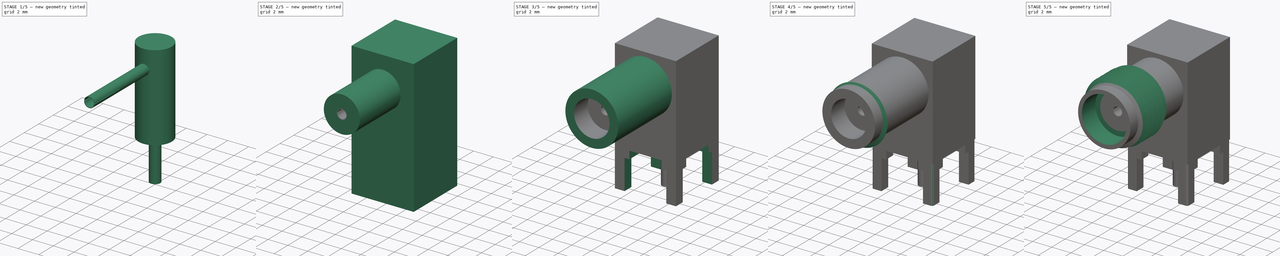
[diagram: build sequence overview — one tinted view per stage of 5, left to right]
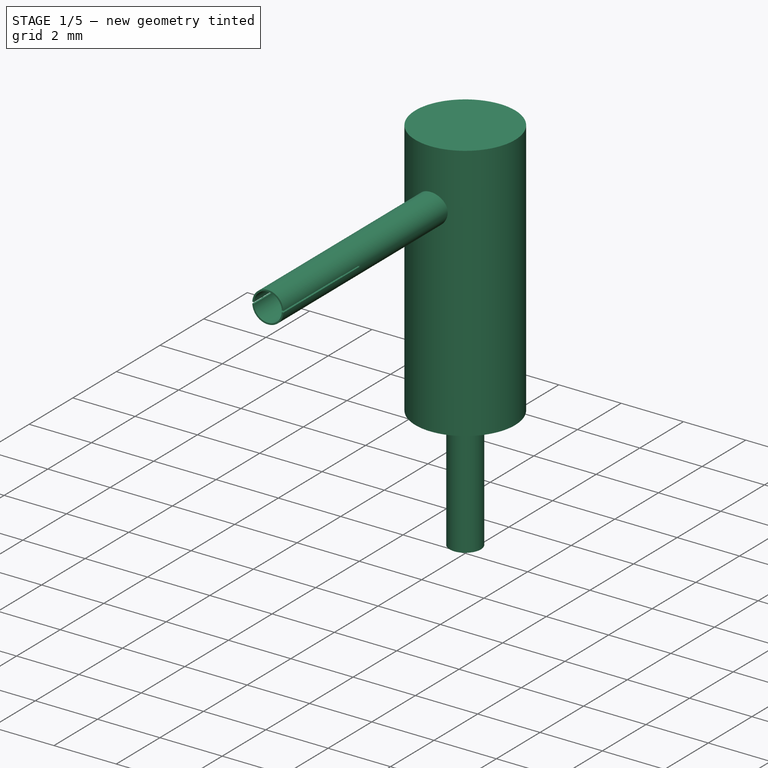
[diagram: stage 1 of 5 — iso view after this stage's code; geometry added in this stage tinted green]
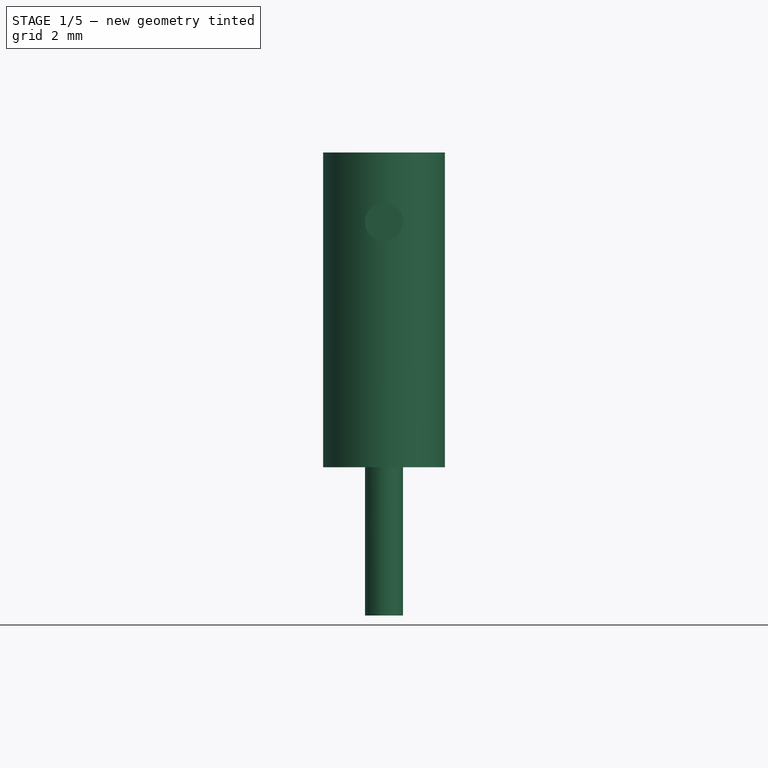
[diagram: stage 1 of 5 — front view after this stage's code; geometry added in this stage tinted green]
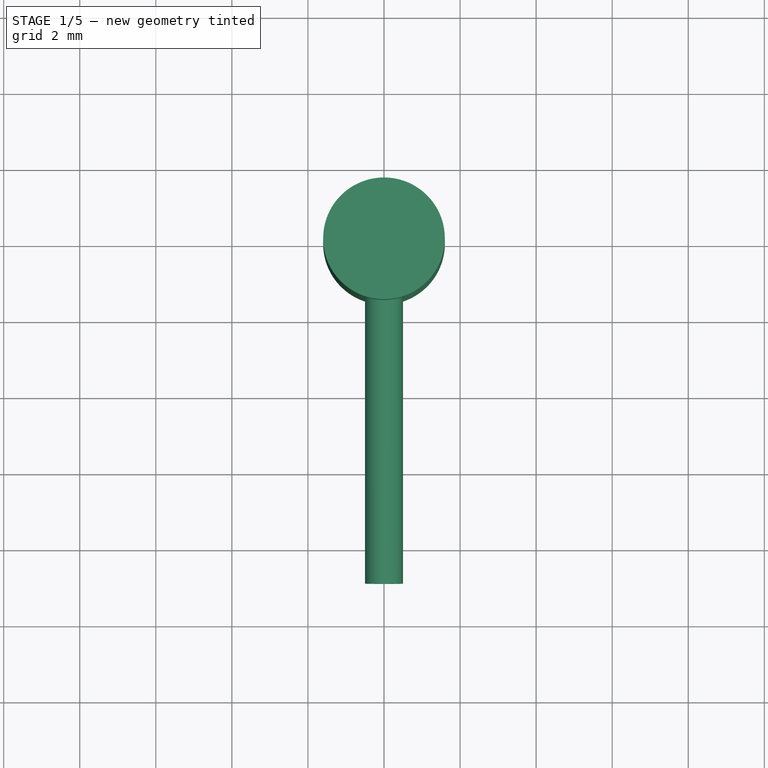
[diagram: stage 1 of 5 — top view after this stage's code; geometry added in this stage tinted green]
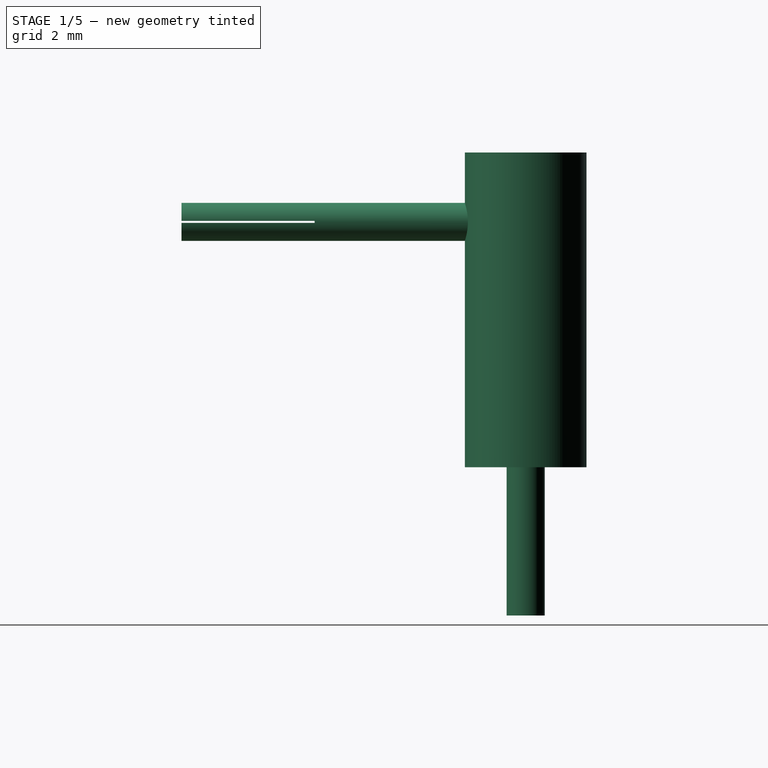
[diagram: stage 1 of 5 — right view after this stage's code; geometry added in this stage tinted green]
FCSTD DOCUMENT  (FreeCAD 1.0R38641 +468 (Git))
Label: sma-5-1814400-2
License: All rights reserved
LicenseURL: http://en.wikipedia.org/wiki/All_rights_reserved
objects: Sketcher::SketchObject×18, PartDesign::Pocket×9, PartDesign::Pad×6, PartDesign::Plane×3, PartDesign::AdditiveHelix×3, PartDesign::Body×3, Spreadsheet::Sheet×1, PartDesign::Line×1, PartDesign::PolarPattern×1, PartDesign::LinearPattern×1
note: 101 computed .brp shape members not serialized (recipe doc carries the construction recipe); baked Part::Feature solids carry a one-line shape summary decoded from their .brp

FEATURE [PartDesign::Body] Body
  AllowCompound = false
  Group = -> [DatumPlane,DatumLine,Pad,Sketch,Sketch001,Pocket,Sketch002,Pocket001,Sketch003,Pad001,Sketch004,Sketch005,Pocket003,Sketch006,Pocket004,Sketch007,Pocket005,PolarPattern,Sketch008,Sketch009,AdditiveHelix,AdditiveHelix001,LinearPattern,Sketch010,AdditiveHelix002,Pocket006]
  Origin = -> Origin
  Tip = -> Pocket006
FEATURE [PartDesign::Plane] DatumPlane001
  AttachmentOffset = pos=(0,0,9.05) rot=(0,0,1;0rad)
  AttachmentSupport = -> [XZ_Plane001]
  Length = 60
  MapMode = 5
  Placement = pos=(0,-9.05,2e-15) rot=(1,0,0;1.5708rad)
  ResizeMode = 0
  Width = 60
  expr: .AttachmentOffset.Base.z = <<Master>>.ra_clen - 2 mm
FEATURE [Sketcher::SketchObject] Sketch011
  ArcFitTolerance = 0
  AttachmentOffset = pos=(0,0,0.8) rot=(0,0,1;0rad)
  AttachmentSupport = -> [XY_Plane001]
  FullyConstrained = true
  MakeInternals = false
  MapMode = 5
  Placement = pos=(0,0,0.8) rot=(0,0,1;0rad)
  expr: .AttachmentOffset.Base.z = <<Master>>.pin_step
  sketch-geometry (1):
    g0: Circle CenterX=0 CenterY=0 CenterZ=0 NormalX=0 NormalY=0 NormalZ=1 AngleXU=0 Radius=1.6
  constraints (2):
    c: Coincident(g0,g-1)
    c: Diameter(g0) = 3.2
FEATURE [PartDesign::Pad] Pad002
  Direction = (0,0,1)
  Length = 8.275
  Length2 = 100
  Profile = -> Sketch011
  Suppressed = false
  Type = 0
  expr: Length = <<Master>>.ra_offset + 1.825 mm - <<Master>>.pin_step
FEATURE [PartDesign::Body] Body001  label="Insulator"
  AllowCompound = false
  Group = -> [DatumPlane001,Sketch011,Pad002,Sketch012,Pad003,Sketch013,Pocket007,Sketch014,Pocket008]
  Origin = -> Origin001
  Tip = -> Pocket008
FEATURE [PartDesign::Plane] DatumPlane002
  AttachmentOffset = pos=(0,0,9.05) rot=(0,0,1;0rad)
  AttachmentSupport = -> [XZ_Plane002]
  Length = 60
  MapMode = 5
  Placement = pos=(0,-9.05,2e-15) rot=(1,0,0;1.5708rad)
  ResizeMode = 0
  Width = 60
  expr: .AttachmentOffset.Base.z = <<Master>>.ra_clen - 2 mm
FEATURE [Sketcher::SketchObject] Sketch015
  ArcFitTolerance = 0
  AttachmentSupport = -> [XY_Plane002]
  FullyConstrained = true
  MakeInternals = false
  MapMode = 5
  expr: Constraints[1] = <<Master>>.pin_dia
  sketch-geometry (1):
    g0: Circle CenterX=0 CenterY=0 CenterZ=0 NormalX=0 NormalY=0 NormalZ=1 AngleXU=0 Radius=0.5
  constraints (2):
    c: Coincident(g0,g-1)
    c: Diameter(g0) = 1
FEATURE [PartDesign::Pad] Pad004
  Direction = (0,0,1)
  Length = 7.25
  Length2 = 3.1
  Profile = -> Sketch015
  Suppressed = false
  Type = 4
  expr: Length = <<Master>>.ra_offset
  expr: Length2 = <<Master>>.pin_len
FEATURE [Sketcher::SketchObject] Sketch016
  ArcFitTolerance = 0
  AttachmentSupport = -> [XZ_Plane002]
  FullyConstrained = true
  MakeInternals = false
  MapMode = 5
  Placement = pos=(0,0,0) rot=(1,0,0;1.5708rad)
  expr: Constraints[1] = <<Master>>.ra_offset
  expr: Constraints[2] = <<Master>>.pin_dia
  sketch-geometry (1):
    g0: Circle CenterX=0 CenterY=7.25 CenterZ=0 NormalX=0 NormalY=0 NormalZ=1 AngleXU=0 Radius=0.5
  constraints (3):
    c: PointOnObject(g0,g-2)
    c: DistanceY(g-1,g0) = 7.25
    c: Diameter(g0) = 1
FEATURE [PartDesign::Pad] Pad005
  BaseFeature = -> Pad004
  Direction = (0,-1,2e-16)
  Length = 9.05
  Length2 = 100
  Profile = -> Sketch016
  Suppressed = false
  Type = 0
  expr: Length = <<Master>>.ra_clen - 2 mm
FEATURE [Sketcher::SketchObject] Sketch017
  ArcFitTolerance = 0
  AttachmentSupport = -> [DatumPlane002]
  FullyConstrained = true
  MakeInternals = false
  MapMode = 5
  Placement = pos=(0,-9.05,2e-15) rot=(1,0,0;1.5708rad)
  expr: Constraints[1] = <<Master>>.ra_offset
  expr: Constraints[4] = <<Master>>.pin_dia + 0.001 mm
  sketch-geometry (12):
    g0: ArcOfCircle CenterX=0 CenterY=7.25 CenterZ=0 NormalX=0 NormalY=0 NormalZ=1 AngleXU=0 Radius=0.45 StartAngle=3.19718 EndAngle=6.2276
    g1: ArcOfCircle CenterX=0 CenterY=7.25 CenterZ=0 NormalX=0 NormalY=0 NormalZ=1 AngleXU=0 Radius=0.5005 StartAngle=3.09162 EndAngle=3.19156
    g2: LineSegment StartX=-0.499875 StartY=7.275 StartZ=0 EndX=-0.449305 EndY=7.275 EndZ=0
    g3: LineSegment StartX=-0.499875 StartY=7.225 StartZ=0 EndX=-0.449305 EndY=7.225 EndZ=0
    g4: LineSegment StartX=0.449305 StartY=7.275 StartZ=0 EndX=0.499875 EndY=7.275 EndZ=0
    g5: LineSegment StartX=0.449305 StartY=7.225 StartZ=0 EndX=0.499875 EndY=7.225 EndZ=0
    g6: LineSegment [constr] StartX=-0.449305 StartY=7.275 StartZ=0 EndX=0.449305 EndY=7.275 EndZ=0
    g7: LineSegment [constr] StartX=0.449305 StartY=7.225 StartZ=0 EndX=-0.449305 EndY=7.225 EndZ=0
    g8: ArcOfCircle CenterX=0 CenterY=7.25 CenterZ=0 NormalX=0 NormalY=0 NormalZ=1 AngleXU=0 Radius=0.5005 StartAngle=6.23321 EndAngle=6.33316
    g9: ArcOfCircle CenterX=0 CenterY=7.25 CenterZ=0 NormalX=0 NormalY=0 NormalZ=1 AngleXU=0 Radius=0.45 StartAngle=0.0555842 EndAngle=3.08601
    g10: LineSegment [constr] StartX=0 StartY=7.25 StartZ=0 EndX=0 EndY=7.275 EndZ=0
    g11: LineSegment [constr] StartX=0 StartY=7.25 StartZ=0 EndX=0 EndY=7.225 EndZ=0
  constraints (35):
    c: PointOnObject(g0,g-2)
    c: DistanceY(g-1,g0) = 7.25
    c: Diameter(g0) = 0.9
    c: Coincident(g1,g0)
    c: Diameter(g1) = 1.001
    c: Horizontal(g2)
    c: Horizontal(g5)
    c: Horizontal(g3)
    c: Coincident(g6,g2)
    c: Coincident(g6,g4)
    c: Horizontal(g6)
    c: Coincident(g7,g5)
    c: Coincident(g7,g3)
    c: Horizontal(g7)
    c: Horizontal(g4)
    c: Coincident(g1,g2)
    c: Coincident(g8,g4)
    c: Equal(g1,g8)
    c: Coincident(g1,g3)
    c: Coincident(g8,g5)
    c: Coincident(g1,g8)
    c: Coincident(g0,g3)
    c: Coincident(g9,g2)
    c: Equal(g0,g9)
    c: Coincident(g0,g5)
    c: Coincident(g9,g4)
    c: Coincident(g0,g9)
    c: Coincident(g10,g0)
    c: PointOnObject(g10,g6)
    c: Vertical(g10)
    c: Coincident(g11,g0)
    c: PointOnObject(g11,g7)
    c: Vertical(g11)
    c: Equal(g11,g10)
    c: DistanceY(g1,g1) = 0.05
FEATURE [PartDesign::Pocket] Pocket009
  BaseFeature = -> Pad005
  Direction = (0,1,-2e-16)
  Length = 3.5
  Length2 = 100
  Profile = -> Sketch017
  Suppressed = false
  Type = 0
FEATURE [PartDesign::Body] Body002  label="Pin"
  AllowCompound = false
  Group = -> [DatumPlane002,Sketch015,Pad004,Sketch016,Pad005,Sketch017,Pocket009]
  Origin = -> Origin002
  Tip = -> Pocket009
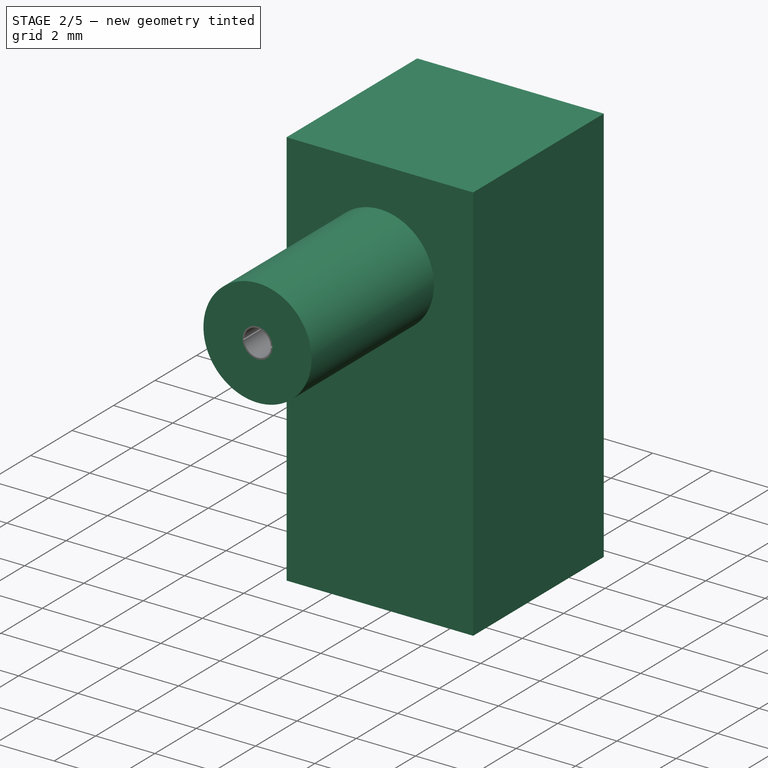
[diagram: stage 2 of 5 — iso view after this stage's code; geometry added in this stage tinted green]
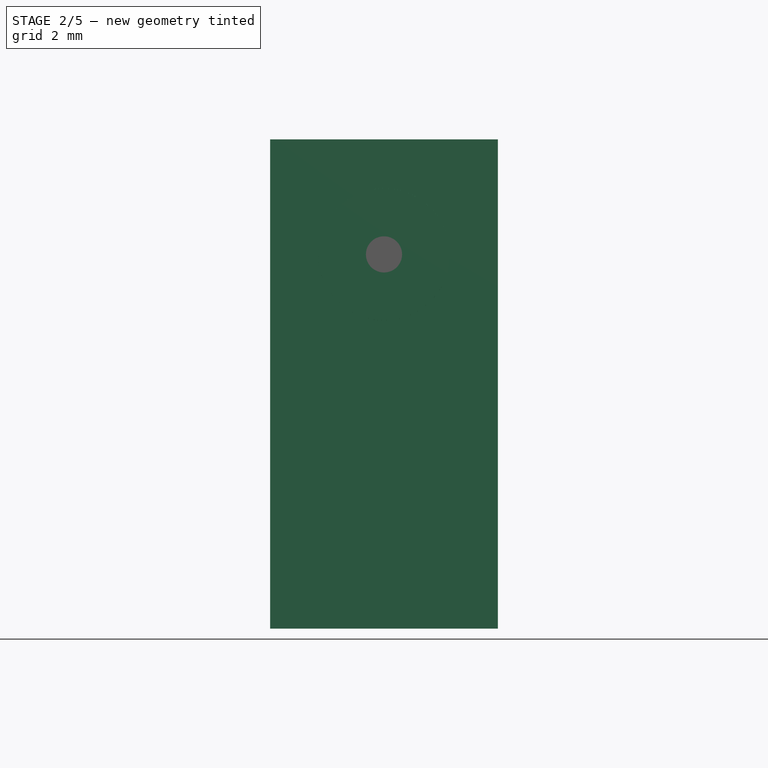
[diagram: stage 2 of 5 — front view after this stage's code; geometry added in this stage tinted green]
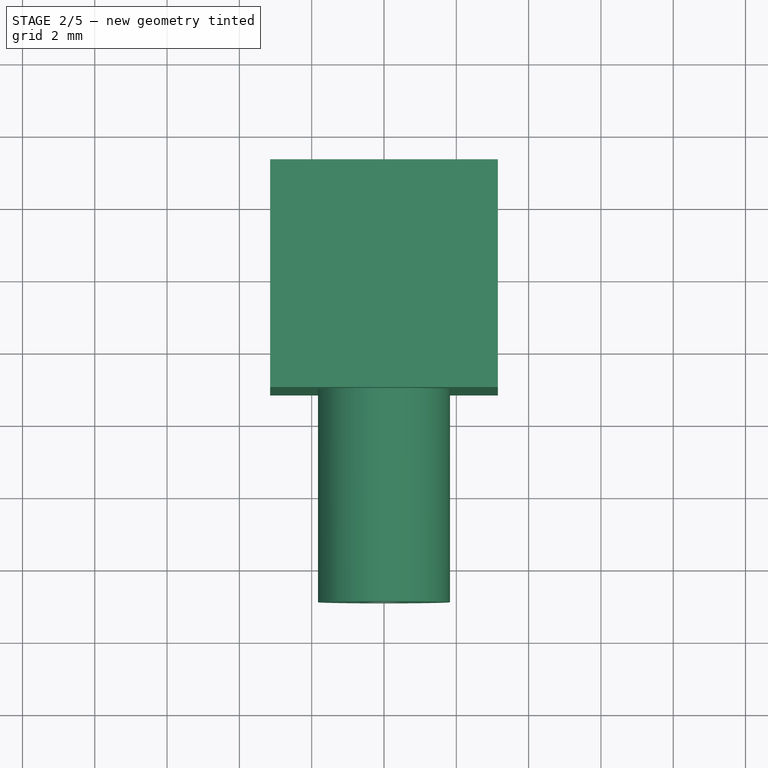
[diagram: stage 2 of 5 — top view after this stage's code; geometry added in this stage tinted green]
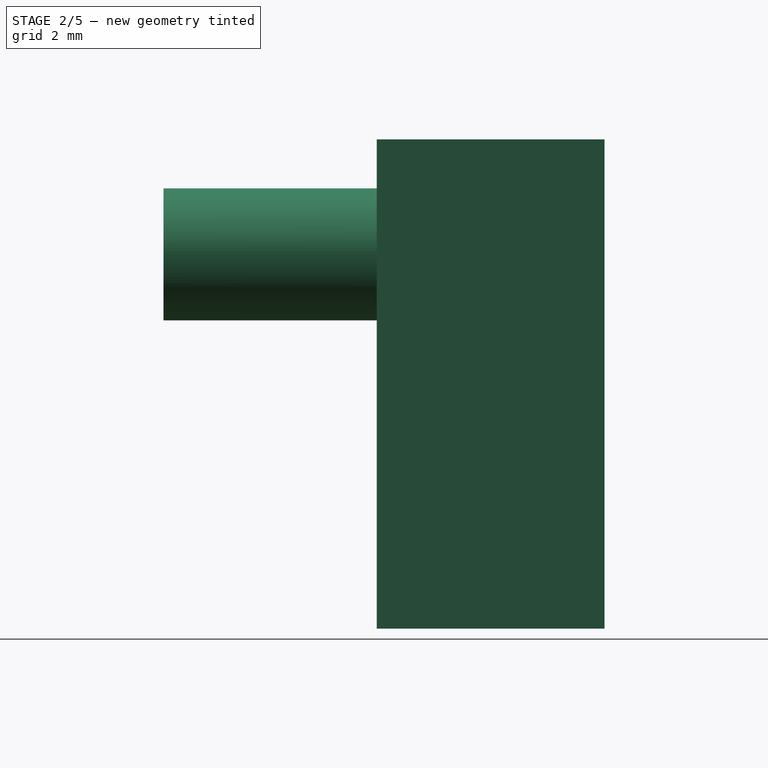
[diagram: stage 2 of 5 — right view after this stage's code; geometry added in this stage tinted green]
FEATURE [Spreadsheet::Sheet] Spreadsheet  label="Master"
  cells = A2='Body SQ; B2(body_sq)==6.3 mm; C2='body_sq; A3='Body Height; B3(body_h)==ra_offset + 3.18 mm; C3='body_h; A5='Pin len; B5(pin_len)==13.53 mm - body_h; C5='pin_len; A6='Pin Width; B6(pin_w)==1 mm; C6='pin_w; A7='Pin Step; B7(pin_step)==body_h - 9.63 mm; C7='pin_step; A8='Pin Step Width; B8(pin_step_w)==0.5 mm; C8='pin_step_w; A9='Pin Diameter; B9(pin_dia)==1 mm; C9='pin_dia; A11='RA Offset; B11(ra_offset)==7.25 mm; C11='ra_offset; A12='RA Length; B12(ra_len)==14.2 mm; C12='ra_len; A13='RA Diameter; B13(ra_dia)==5.45 mm; C13='ra_dia; A14='RA C-Length; B14(ra_clen)==ra_len - body_sq / 2; C14='ra_clen; A16='Thread Pitch; B16(thread_p)==0.7056 mm; C16='thread_p; A17='Thread First; B17(thread_f)==ra_clen - 1 mm; C17='thread_f; A18='Thread Middle; B18(thread_m)==thread_f - thread_p; C18='thread_m; A19='Thread Last; B19(thread_l)==thread_m - thread_p * 4; C19='thread_l; A20='Thread overlap offset; B20(thread_o)==0.02 mm; C20='thread_o; A21='Thread Cone; B21(thread_c)==0.513 mm; C21='thread_c; A22='Thread Cone Helix; B22(thread_ch)==ra_dia - 2 * thread_c - 0.001 mm; C22='thread_ch
FEATURE [PartDesign::Plane] DatumPlane
  AttachmentOffset = pos=(0,0,11.05) rot=(0,0,1;0rad)
  AttachmentSupport = -> [XZ_Plane]
  Length = 60
  MapMode = 5
  Placement = pos=(0,-11.05,2.5e-15) rot=(1,0,0;1.5708rad)
  ResizeMode = 0
  Width = 60
  expr: .AttachmentOffset.Base.z = <<Master>>.ra_clen
FEATURE [PartDesign::Line] DatumLine
  AttacherType = Attacher::AttachEngineLine
  AttachmentOffset = pos=(0,7.25,0) rot=(0,0,1;0rad)
  AttachmentSupport = -> [Y_Axis]
  Length = 20
  MapMode = 29
  Placement = pos=(0,1.6e-15,7.25) rot=(0,0.707107,0.707107;3.14159rad)
  ResizeMode = 0
  expr: .AttachmentOffset.Base.y = <<Master>>.ra_offset
FEATURE [Sketcher::SketchObject] Sketch
  ArcFitTolerance = 0
  AttachmentSupport = -> [XY_Plane]
  FullyConstrained = true
  MakeInternals = false
  MapMode = 5
  expr: Constraints[10] = <<Master>>.body_sq
  sketch-geometry (4):
    g0: LineSegment StartX=-3.15 StartY=3.15 StartZ=0 EndX=3.15 EndY=3.15 EndZ=0
    g1: LineSegment StartX=3.15 StartY=3.15 StartZ=0 EndX=3.15 EndY=-3.15 EndZ=0
    g2: LineSegment StartX=3.15 StartY=-3.15 StartZ=0 EndX=-3.15 EndY=-3.15 EndZ=0
    g3: LineSegment StartX=-3.15 StartY=-3.15 StartZ=0 EndX=-3.15 EndY=3.15 EndZ=0
  constraints (11):
    c: Coincident(g0,g1)
    c: Coincident(g1,g2)
    c: Coincident(g2,g3)
    c: Coincident(g3,g0)
    c: Horizontal(g0)
    c: Horizontal(g2)
    c: Vertical(g1)
    c: Vertical(g3)
    c: Symmetric(g2,g0,g-1)
    c: Equal(g0,g1)
    c: DistanceX(g0,g0) = 6.3
FEATURE [PartDesign::Pad] Pad
  Direction = (0,0,1)
  Length = 10.43
  Length2 = 3.1
  Profile = -> Sketch
  Suppressed = false
  Type = 4
  expr: Length = <<Master>>.body_h
  expr: Length2 = <<Master>>.pin_len
FEATURE [Sketcher::SketchObject] Sketch012
  ArcFitTolerance = 0
  AttachmentSupport = -> [XZ_Plane001]
  FullyConstrained = true
  MakeInternals = false
  MapMode = 5
  Placement = pos=(0,0,0) rot=(1,0,0;1.5708rad)
  expr: Constraints[1] = <<Master>>.ra_offset
  sketch-geometry (1):
    g0: Circle CenterX=0 CenterY=7.25 CenterZ=0 NormalX=0 NormalY=0 NormalZ=1 AngleXU=0 Radius=1.825
  constraints (3):
    c: PointOnObject(g0,g-2)
    c: DistanceY(g-1,g0) = 7.25
    c: Diameter(g0) = 3.65
FEATURE [PartDesign::Pad] Pad003
  BaseFeature = -> Pad002
  Direction = (0,-1,2e-16)
  Length = 9.05
  Length2 = 1.6
  Profile = -> Sketch012
  Suppressed = false
  Type = 4
  expr: Length = <<Master>>.ra_clen - 2 mm
FEATURE [Sketcher::SketchObject] Sketch013
  ArcFitTolerance = 0
  AttachmentSupport = -> [XY_Plane001]
  FullyConstrained = true
  MakeInternals = false
  MapMode = 5
  sketch-geometry (1):
    g0: Circle CenterX=0 CenterY=0 CenterZ=0 NormalX=0 NormalY=0 NormalZ=1 AngleXU=0 Radius=0.5
  constraints (2):
    c: Coincident(g0,g-1)
    c: Diameter(g0) = 1
FEATURE [PartDesign::Pocket] Pocket007
  BaseFeature = -> Pad003
  Direction = (0,0,-1)
  Length = 5
  Length2 = 100
  Midplane = true
  Profile = -> Sketch013
  Suppressed = false
  Type = 1
FEATURE [Sketcher::SketchObject] Sketch014
  ArcFitTolerance = 0
  AttachmentSupport = -> [DatumPlane001]
  FullyConstrained = true
  MakeInternals = false
  MapMode = 5
  Placement = pos=(0,-9.05,2e-15) rot=(1,0,0;1.5708rad)
  expr: Constraints[1] = <<Master>>.ra_offset
  expr: Constraints[2] = <<Master>>.pin_dia
  sketch-geometry (1):
    g0: Circle CenterX=0 CenterY=7.25 CenterZ=0 NormalX=0 NormalY=0 NormalZ=1 AngleXU=0 Radius=0.5
  constraints (3):
    c: PointOnObject(g0,g-2)
    c: DistanceY(g-1,g0) = 7.25
    c: Diameter(g0) = 1
FEATURE [PartDesign::Pocket] Pocket008
  BaseFeature = -> Pocket007
  Direction = (0,1,-2e-16)
  Length = 5
  Length2 = 100
  Profile = -> Sketch014
  Suppressed = false
  Type = 1
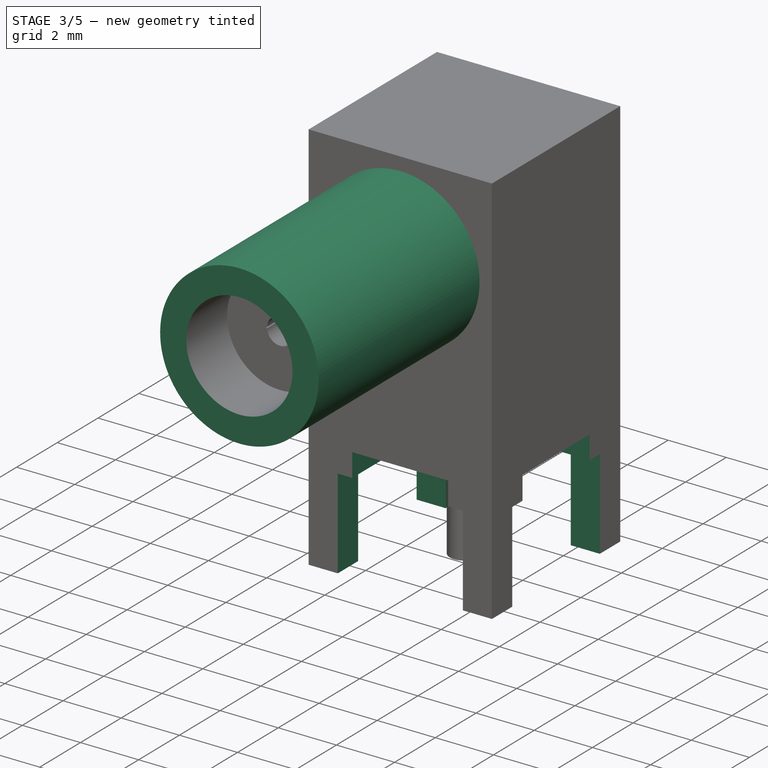
[diagram: stage 3 of 5 — iso view after this stage's code; geometry added in this stage tinted green]
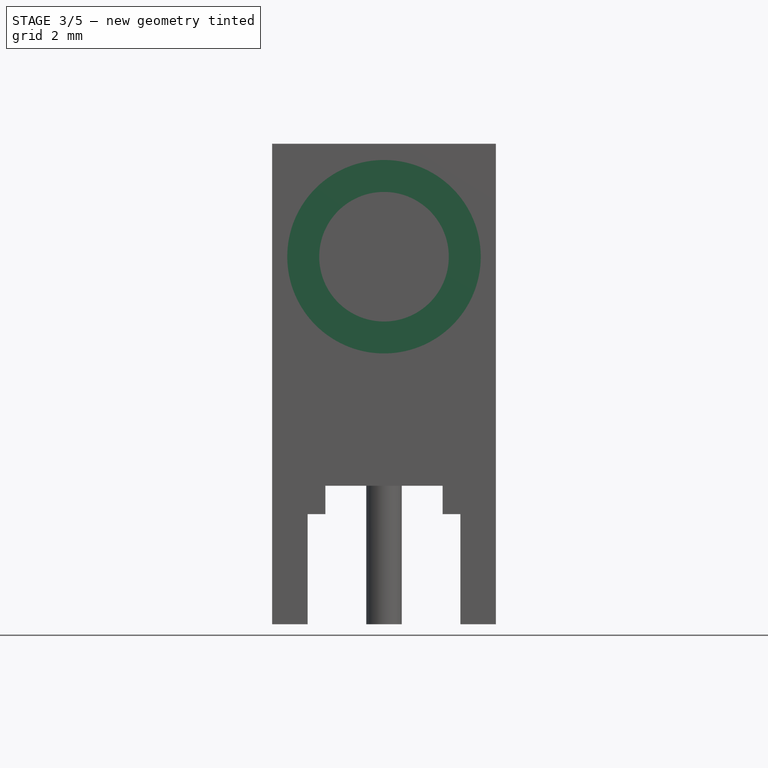
[diagram: stage 3 of 5 — front view after this stage's code; geometry added in this stage tinted green]
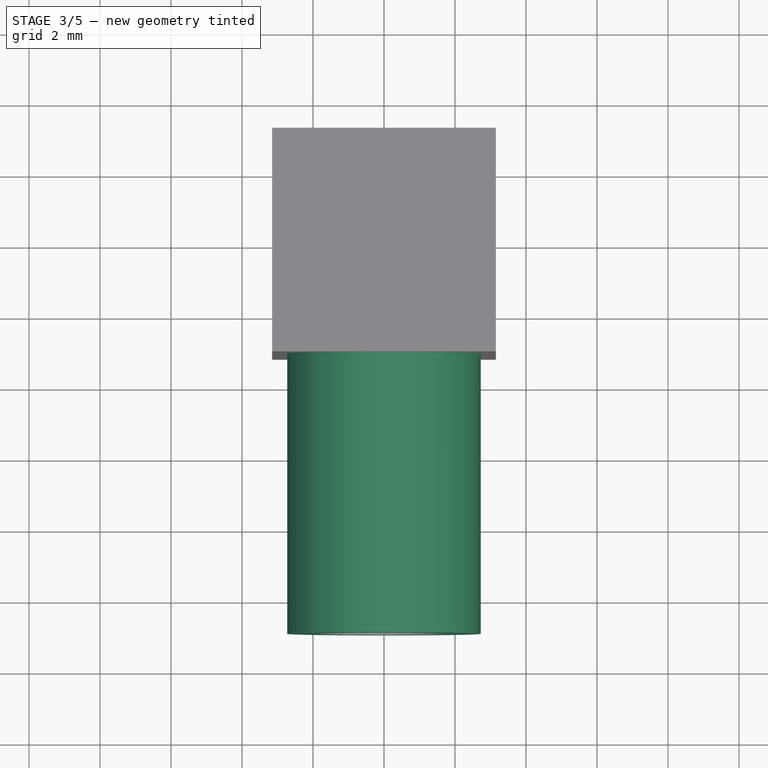
[diagram: stage 3 of 5 — top view after this stage's code; geometry added in this stage tinted green]
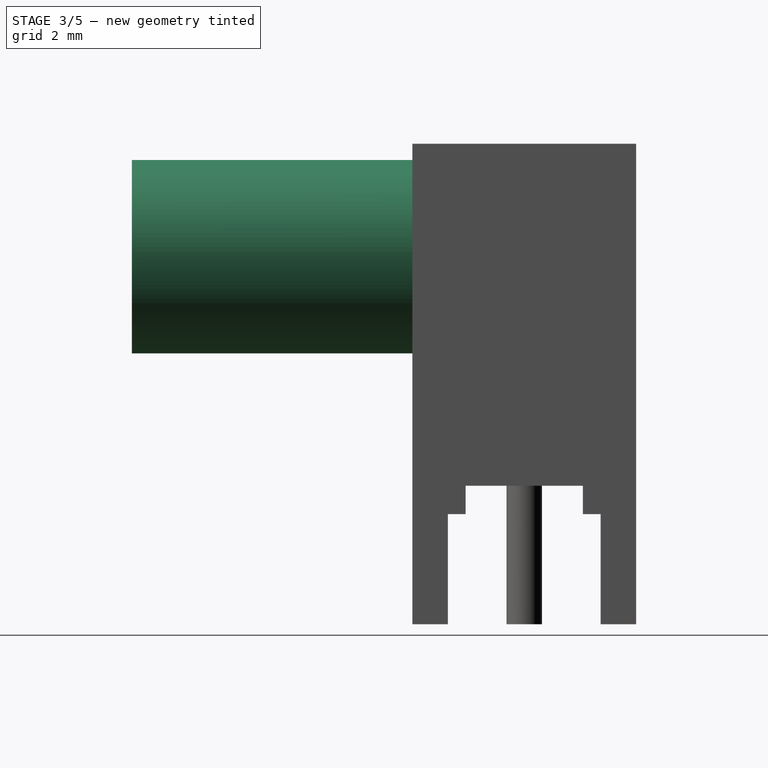
[diagram: stage 3 of 5 — right view after this stage's code; geometry added in this stage tinted green]
FEATURE [Sketcher::SketchObject] Sketch001
  ArcFitTolerance = 0
  AttachmentSupport = -> [XZ_Plane]
  FullyConstrained = true
  MakeInternals = false
  MapMode = 5
  Placement = pos=(0,0,0) rot=(1,0,0;1.5708rad)
  expr: Constraints[18] = <<Master>>.pin_len
  expr: Constraints[19] = <<Master>>.body_sq - 2 * <<Master>>.pin_w
  expr: Constraints[20] = <<Master>>.pin_step
  expr: Constraints[22] = <<Master>>.pin_step_w
  sketch-geometry (8):
    g0: LineSegment StartX=-1.65 StartY=0 StartZ=0 EndX=-1.65 EndY=0.8 EndZ=0
    g1: LineSegment StartX=-1.65 StartY=0.8 StartZ=0 EndX=1.65 EndY=0.8 EndZ=0
    g2: LineSegment StartX=1.65 StartY=0.8 StartZ=0 EndX=1.65 EndY=2.8876e-12 EndZ=0
    g3: LineSegment StartX=1.65 StartY=2.8876e-12 StartZ=0 EndX=2.15 EndY=2.8876e-12 EndZ=0
    g4: LineSegment StartX=2.15 StartY=2.8876e-12 StartZ=0 EndX=2.15 EndY=-3.1 EndZ=0
    g5: LineSegment StartX=2.15 StartY=-3.1 StartZ=0 EndX=-2.15 EndY=-3.1 EndZ=0
    g6: LineSegment StartX=-2.15 StartY=-3.1 StartZ=0 EndX=-2.15 EndY=0 EndZ=0
    g7: LineSegment StartX=-2.15 StartY=0 StartZ=0 EndX=-1.65 EndY=0 EndZ=0
  constraints (23):
    c: PointOnObject(g0,g-1)
    c: Vertical(g0)
    c: Coincident(g0,g1)
    c: Coincident(g1,g2)
    c: Vertical(g2)
    c: Coincident(g2,g3)
    c: Horizontal(g3)
    c: Coincident(g3,g4)
    c: Vertical(g4)
    c: Coincident(g4,g5)
    c: Horizontal(g5)
    c: Coincident(g5,g6)
    c: Vertical(g6)
    c: Coincident(g6,g7)
    c: Coincident(g7,g0)
    c: Horizontal(g7)
    c: Symmetric(g0,g1,g-2)
    c: Equal(g7,g3)
    c: DistanceY(g6,g6) = 3.1
    c: DistanceX(g5,g5) = 4.3
    c: DistanceY(g0,g0) = 0.8
    c: Equal(g2,g0)
    c: DistanceX(g3,g3) = 0.5
FEATURE [PartDesign::Pocket] Pocket
  BaseFeature = -> Pad
  Direction = (0,1,-2e-16)
  Length = 5
  Length2 = 100
  Midplane = true
  Profile = -> Sketch001
  Suppressed = false
  Type = 1
FEATURE [Sketcher::SketchObject] Sketch002
  ArcFitTolerance = 0
  AttachmentSupport = -> [YZ_Plane]
  FullyConstrained = true
  MakeInternals = false
  MapMode = 5
  Placement = pos=(0,0,0) rot=(0.57735,0.57735,0.57735;2.0944rad)
  expr: Constraints[19] = <<Master>>.pin_len
  expr: Constraints[20] = <<Master>>.pin_step
  expr: Constraints[21] = <<Master>>.pin_step_w
  expr: Constraints[22] = <<Master>>.body_sq - <<Master>>.pin_w * 2
  sketch-geometry (8):
    g0: LineSegment StartX=-1.65 StartY=0 StartZ=0 EndX=-1.65 EndY=0.8 EndZ=0
    g1: LineSegment StartX=-1.65 StartY=0.8 StartZ=0 EndX=1.65 EndY=0.8 EndZ=0
    g2: LineSegment StartX=1.65 StartY=0.8 StartZ=0 EndX=1.65 EndY=1.0436e-11 EndZ=0
    g3: LineSegment StartX=1.65 StartY=1.0436e-11 StartZ=0 EndX=2.15 EndY=0 EndZ=0
    g4: LineSegment StartX=2.15 StartY=0 StartZ=0 EndX=2.15 EndY=-3.1 EndZ=0
    g5: LineSegment StartX=2.15 StartY=-3.1 StartZ=0 EndX=-2.15 EndY=-3.1 EndZ=0
    g6: LineSegment StartX=-2.15 StartY=-3.1 StartZ=0 EndX=-2.15 EndY=0 EndZ=0
    g7: LineSegment StartX=-2.15 StartY=0 StartZ=0 EndX=-1.65 EndY=0 EndZ=0
  constraints (23):
    c: PointOnObject(g0,g-1)
    c: Coincident(g0,g1)
    c: Coincident(g1,g2)
    c: Vertical(g2)
    c: Coincident(g2,g3)
    c: PointOnObject(g3,g-1)
    c: Coincident(g3,g4)
    c: Vertical(g4)
    c: Coincident(g4,g5)
    c: Horizontal(g5)
    c: Coincident(g5,g6)
    c: PointOnObject(g6,g-1)
    c: Vertical(g6)
    c: Coincident(g6,g7)
    c: Coincident(g7,g0)
    c: Vertical(g0)
    c: Equal(g0,g2)
    c: Equal(g7,g3)
    c: Symmetric(g1,g0,g-2)
    c: DistanceY(g6,g6) = 3.1
    c: DistanceY(g0,g0) = 0.8
    c: DistanceX(g3,g3) = 0.5
    c: DistanceX(g5,g5) = 4.3
FEATURE [PartDesign::Pocket] Pocket001
  BaseFeature = -> Pocket
  Direction = (-1,0,0)
  Length = 5
  Length2 = 100
  Midplane = true
  Profile = -> Sketch002
  Suppressed = false
  Type = 1
FEATURE [Sketcher::SketchObject] Sketch003
  ArcFitTolerance = 0
  AttachmentSupport = -> [XZ_Plane]
  FullyConstrained = true
  MakeInternals = false
  MapMode = 5
  Placement = pos=(0,0,0) rot=(1,0,0;1.5708rad)
  expr: Constraints[1] = <<Master>>.ra_offset
  expr: Constraints[2] = <<Master>>.ra_dia
  sketch-geometry (1):
    g0: Circle CenterX=0 CenterY=7.25 CenterZ=0 NormalX=0 NormalY=0 NormalZ=1 AngleXU=0 Radius=2.725
  constraints (3):
    c: PointOnObject(g0,g-2)
    c: DistanceY(g-1,g0) = 7.25
    c: Diameter(g0) = 5.45
FEATURE [PartDesign::Pad] Pad001
  BaseFeature = -> Pocket001
  Direction = (0,-1,2e-16)
  Length = 11.05
  Length2 = 100
  Profile = -> Sketch003
  Suppressed = false
  Type = 0
  expr: Length = <<Master>>.ra_clen
FEATURE [Sketcher::SketchObject] Sketch004
  ArcFitTolerance = 0
  AttachmentSupport = -> [DatumPlane]
  FullyConstrained = true
  MakeInternals = false
  MapMode = 5
  Placement = pos=(0,-11.05,2.5e-15) rot=(1,0,0;1.5708rad)
  expr: Constraints[1] = <<Master>>.ra_offset
  expr: Constraints[2] = <<Master>>.ra_dia - 0.8 mm
  sketch-geometry (1):
    g0: Circle CenterX=0 CenterY=7.25 CenterZ=0 NormalX=0 NormalY=0 NormalZ=1 AngleXU=0 Radius=2.325
  constraints (3):
    c: PointOnObject(g0,g-2)
    c: DistanceY(g-1,g0) = 7.25
    c: Diameter(g0) = 4.65
FEATURE [Sketcher::SketchObject] Sketch005
  ArcFitTolerance = 0
  AttachmentSupport = -> [DatumPlane]
  FullyConstrained = true
  MakeInternals = false
  MapMode = 5
  Placement = pos=(0,-11.05,2.5e-15) rot=(1,0,0;1.5708rad)
  expr: Constraints[1] = <<Master>>.ra_offset
  sketch-geometry (1):
    g0: Circle CenterX=0 CenterY=7.25 CenterZ=0 NormalX=0 NormalY=0 NormalZ=1 AngleXU=0 Radius=1.825
  constraints (3):
    c: PointOnObject(g0,g-2)
    c: DistanceY(g-1,g0) = 7.25
    c: Diameter(g0) = 3.65
FEATURE [PartDesign::Pocket] Pocket003
  BaseFeature = -> Pad001
  Direction = (0,1,-2e-16)
  Length = 12.65
  Length2 = 100
  Profile = -> Sketch005
  Suppressed = false
  Type = 0
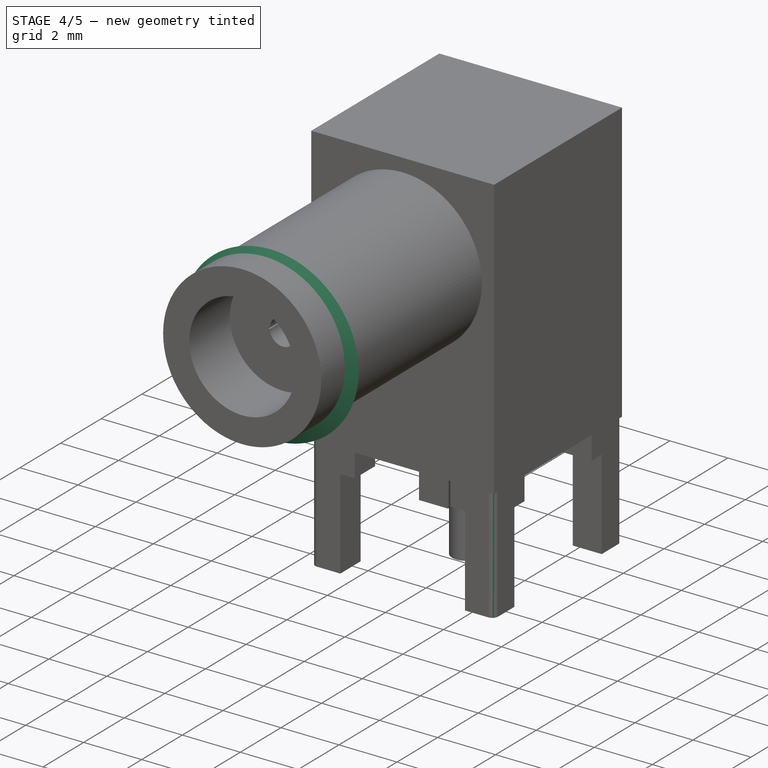
[diagram: stage 4 of 5 — iso view after this stage's code; geometry added in this stage tinted green]
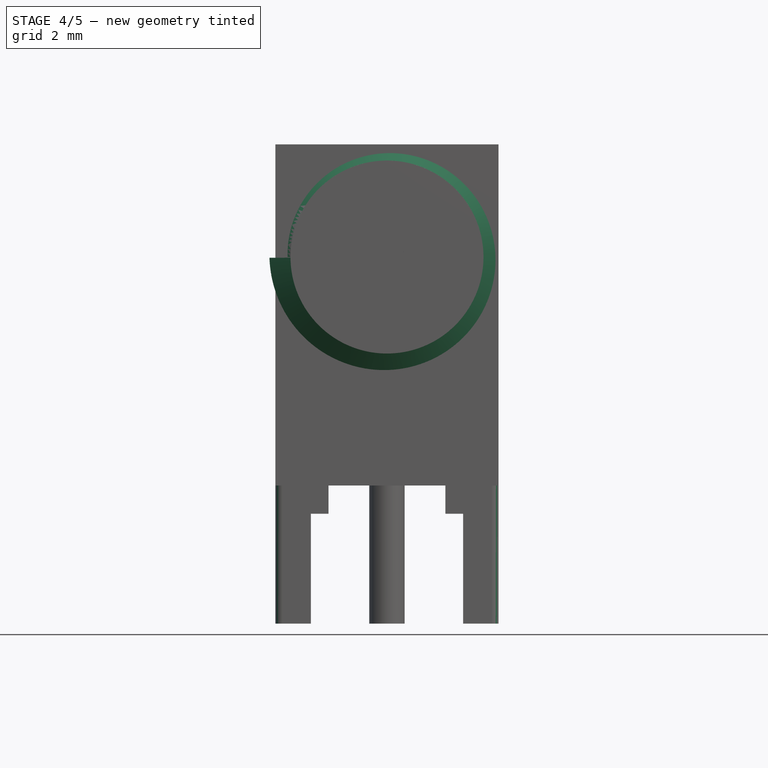
[diagram: stage 4 of 5 — front view after this stage's code; geometry added in this stage tinted green]
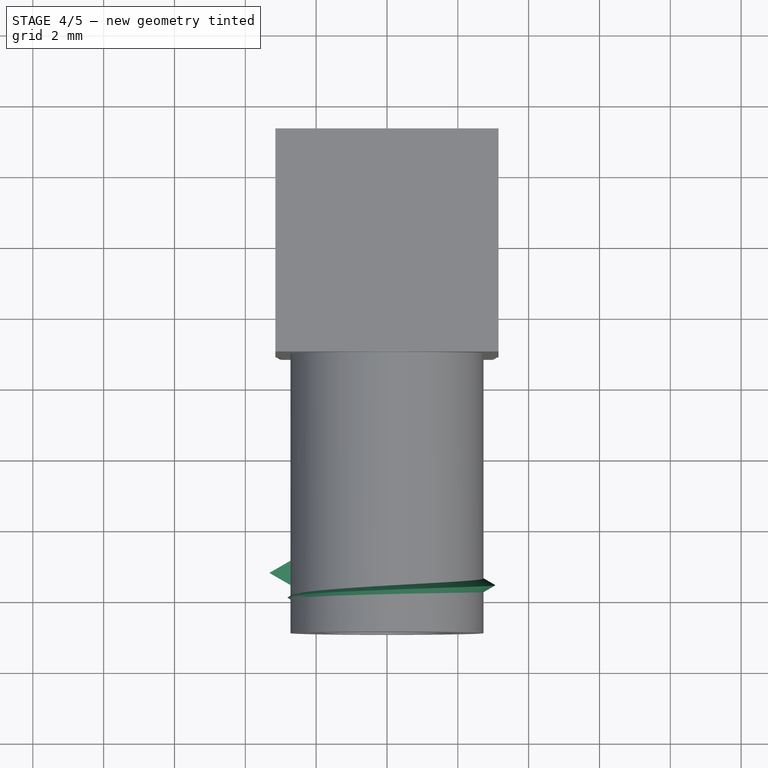
[diagram: stage 4 of 5 — top view after this stage's code; geometry added in this stage tinted green]
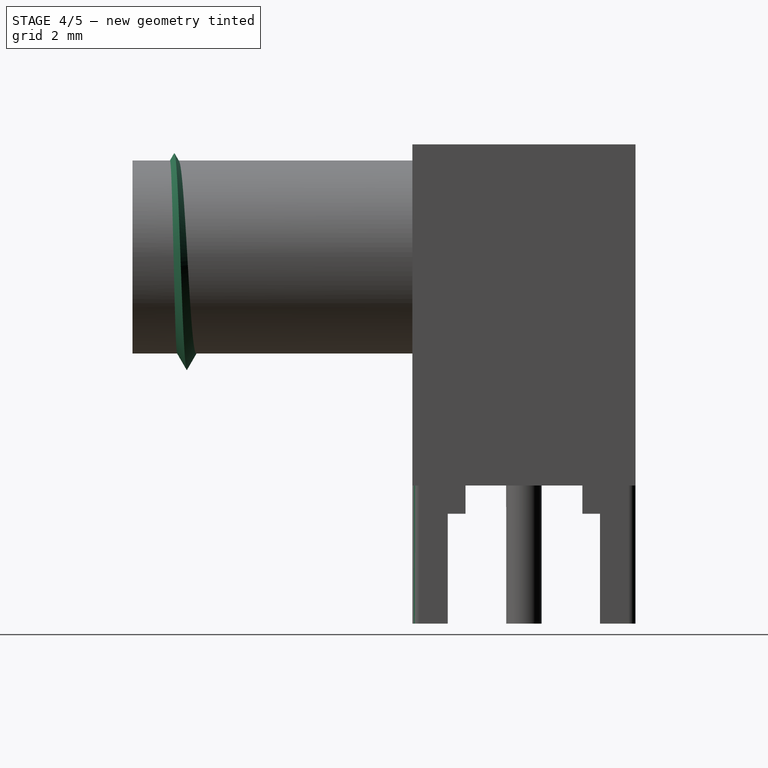
[diagram: stage 4 of 5 — right view after this stage's code; geometry added in this stage tinted green]
FEATURE [Sketcher::SketchObject] Sketch006
  ArcFitTolerance = 0
  AttachmentSupport = -> [XY_Plane]
  FullyConstrained = true
  MakeInternals = false
  MapMode = 5
  sketch-geometry (1):
    g0: Circle CenterX=0 CenterY=0 CenterZ=0 NormalX=0 NormalY=0 NormalZ=1 AngleXU=0 Radius=1.6
  constraints (2):
    c: Coincident(g0,g-1)
    c: Diameter(g0) = 3.2
FEATURE [PartDesign::Pocket] Pocket004
  BaseFeature = -> Pocket003
  Direction = (0,0,-1)
  Length = 9.075
  Length2 = 100
  Profile = -> Sketch006
  Reversed = true
  Suppressed = false
  Type = 0
FEATURE [Sketcher::SketchObject] Sketch007
  ArcFitTolerance = 0
  AttachmentSupport = -> [XY_Plane]
  FullyConstrained = true
  MakeInternals = false
  MapMode = 5
  expr: Constraints[10] = <<Master>>.body_sq
  expr: Constraints[34] = <<Master>>.pin_w
  expr: Constraints[35] = <<Master>>.pin_w + <<Master>>.pin_step_w
  sketch-geometry (12):
    g0: LineSegment [constr] StartX=-3.15 StartY=3.15 StartZ=0 EndX=3.15 EndY=3.15 EndZ=0
    g1: LineSegment [constr] StartX=3.15 StartY=3.15 StartZ=0 EndX=3.15 EndY=-3.15 EndZ=0
    g2: LineSegment [constr] StartX=3.15 StartY=-3.15 StartZ=0 EndX=-3.15 EndY=-3.15 EndZ=0
    g3: LineSegment [constr] StartX=-3.15 StartY=-3.15 StartZ=0 EndX=-3.15 EndY=3.15 EndZ=0
    g4: ArcOfCircle CenterX=2.95 CenterY=2.95 CenterZ=0 NormalX=0 NormalY=0 NormalZ=1 AngleXU=0 Radius=0.2 StartAngle=2.09603e-05 EndAngle=1.5708
    g5: LineSegment StartX=2.95 StartY=3.15 StartZ=0 EndX=3.15 EndY=3.15 EndZ=0
    g6: LineSegment StartX=3.15 StartY=3.15 StartZ=0 EndX=3.15 EndY=2.95 EndZ=0
    g7: LineSegment StartX=0.65 StartY=3.15 StartZ=0 EndX=3.15 EndY=0.65 EndZ=0
    g8: LineSegment StartX=3.15 StartY=0.65 StartZ=0 EndX=0.65 EndY=0.65 EndZ=0
    g9: LineSegment StartX=0.65 StartY=3.15 StartZ=0 EndX=0.65 EndY=0.65 EndZ=0
    g10: LineSegment [constr] StartX=1.65 StartY=3.15 StartZ=0 EndX=1.65 EndY=2.15 EndZ=0
    g11: LineSegment [constr] StartX=2.15 StartY=1.65 StartZ=0 EndX=3.15 EndY=1.65 EndZ=0
  constraints (36):
    c: Coincident(g0,g1)
    c: Coincident(g1,g2)
    c: Coincident(g2,g3)
    c: Coincident(g3,g0)
    c: Horizontal(g0)
    c: Horizontal(g2)
    c: Vertical(g1)
    c: Vertical(g3)
    c: Symmetric(g0,g1,g-1)
    c: Equal(g0,g1)
    c: DistanceX(g0,g0) = 6.3
    c: PointOnObject(g4,g0)
    c: PointOnObject(g4,g1)
    c: Coincident(g5,g0)
    c: Coincident(g6,g5)
    c: Coincident(g6,g4)
    c: Tangent(g6,g4)
    c: Tangent(g5,g4) = 1.5708
    c: Radius(g4) = 0.2
    c: PointOnObject(g7,g0)
    c: PointOnObject(g7,g1)
    c: Coincident(g8,g7)
    c: Horizontal(g8)
    c: Coincident(g9,g7)
    c: Coincident(g9,g8)
    c: Vertical(g9)
    c: Equal(g8,g9)
    c: PointOnObject(g10,g0)
    c: PointOnObject(g10,g7)
    c: Vertical(g10)
    c: PointOnObject(g11,g7)
    c: PointOnObject(g11,g1)
    c: Horizontal(g11)
    c: Equal(g11,g10)
    c: DistanceY(g10,g10) = 1
    c: DistanceX(g10,g5) = 1.5
FEATURE [PartDesign::Pocket] Pocket005
  BaseFeature = -> Pocket004
  Direction = (0,0,-1)
  Length = 3.1
  Length2 = 0.8
  Profile = -> Sketch007
  Suppressed = false
  Type = 4
  expr: Length = <<Master>>.pin_len
  expr: Length2 = <<Master>>.pin_step
FEATURE [PartDesign::PolarPattern] PolarPattern
  Angle = 360
  Axis = -> Sketch007 [N_Axis]
  BaseFeature = -> Pocket005
  Mode = 0
  Occurrences = 4
  Offset = 120
  Originals = -> [Pocket005]
  Suppressed = false
  TransformMode = 0
FEATURE [Sketcher::SketchObject] Sketch008
  ArcFitTolerance = 0
  AttachmentOffset = pos=(0,0,7.25) rot=(0,1,0;0rad)
  AttachmentSupport = -> [XY_Plane]
  FullyConstrained = true
  MakeInternals = false
  MapMode = 5
  Placement = pos=(0,0,7.25) rot=(0,0,1;0rad)
  expr: .AttachmentOffset.Base.z = <<Master>>.ra_offset
  expr: Constraints[11] = <<Master>>.thread_ch
  expr: Constraints[13] = <<Master>>.thread_f
  expr: Constraints[21] = <<Master>>.thread_p - <<Master>>.thread_o
  expr: Constraints[22] = <<Master>>.thread_o
  sketch-geometry (8):
    g0: LineSegment StartX=-2.2115 StartY=-9.7072 StartZ=0 EndX=-2.80525 EndY=-10.05 EndZ=0
    g1: LineSegment StartX=-2.80525 StartY=-10.05 StartZ=0 EndX=-2.2115 EndY=-10.3928 EndZ=0
    g2: LineSegment [constr] StartX=-2.2115 StartY=-10.3928 StartZ=0 EndX=-2.2115 EndY=-9.7072 EndZ=0
    g3: LineSegment [constr] StartX=-2.2115 StartY=-10.3928 StartZ=0 EndX=0 EndY=-10.3928 EndZ=0
    g4: LineSegment [constr] StartX=0 StartY=-10.3928 StartZ=0 EndX=2.2115 EndY=-10.3928 EndZ=0
    g5: LineSegment StartX=-2.2115 StartY=-9.7072 StartZ=0 EndX=-2.1915 EndY=-9.7072 EndZ=0
    g6: LineSegment StartX=-2.1915 StartY=-9.7072 StartZ=0 EndX=-2.1915 EndY=-10.3928 EndZ=0
    g7: LineSegment StartX=-2.1915 StartY=-10.3928 StartZ=0 EndX=-2.2115 EndY=-10.3928 EndZ=0
  constraints (23):
    c: Coincident(g0,g1)
    c: Coincident(g1,g2)
    c: Coincident(g2,g0)
    c: Equal(g1,g0)
    c: Equal(g0,g2)
    c: Coincident(g3,g1)
    c: PointOnObject(g3,g-2)
    c: Horizontal(g3)
    c: Coincident(g4,g3)
    c: Horizontal(g4)
    c: Equal(g4,g3)
    c: DistanceX(g1,g4) = 4.423
    c: Vertical(g2)
    c: DistanceY(g0,g-1) = 10.05
    c: Coincident(g0,g5)
    c: Coincident(g5,g6)
    c: Vertical(g6)
    c: Coincident(g6,g7)
    c: Coincident(g7,g1)
    c: Horizontal(g5)
    c: Horizontal(g7)
    c: DistanceY(g4,g5) = 0.6856
    c: DistanceX(g5,g5) = 0.02
FEATURE [Sketcher::SketchObject] Sketch009
  ArcFitTolerance = 0
  AttachmentOffset = pos=(0,0,7.25) rot=(0,1,0;0rad)
  AttachmentSupport = -> [XY_Plane]
  FullyConstrained = true
  MakeInternals = false
  MapMode = 5
  Placement = pos=(0,0,7.25) rot=(0,0,1;0rad)
  expr: .AttachmentOffset.Base.z = <<Master>>.ra_offset
  expr: Constraints[11] = <<Master>>.ra_dia
  expr: Constraints[13] = <<Master>>.thread_m
  expr: Constraints[21] = <<Master>>.thread_p - <<Master>>.thread_o
  expr: Constraints[22] = <<Master>>.thread_o
  sketch-geometry (8):
    g0: LineSegment StartX=-2.725 StartY=-9.0016 StartZ=0 EndX=-3.31875 EndY=-9.3444 EndZ=0
    g1: LineSegment StartX=-3.31875 StartY=-9.3444 StartZ=0 EndX=-2.725 EndY=-9.6872 EndZ=0
    g2: LineSegment [constr] StartX=-2.725 StartY=-9.6872 StartZ=0 EndX=-2.725 EndY=-9.0016 EndZ=0
    g3: LineSegment [constr] StartX=-2.725 StartY=-9.6872 StartZ=0 EndX=0 EndY=-9.6872 EndZ=0
    g4: LineSegment [constr] StartX=0 StartY=-9.6872 StartZ=0 EndX=2.725 EndY=-9.6872 EndZ=0
    g5: LineSegment StartX=-2.725 StartY=-9.0016 StartZ=0 EndX=-2.705 EndY=-9.0016 EndZ=0
    g6: LineSegment StartX=-2.705 StartY=-9.0016 StartZ=0 EndX=-2.705 EndY=-9.6872 EndZ=0
    g7: LineSegment StartX=-2.705 StartY=-9.6872 StartZ=0 EndX=-2.725 EndY=-9.6872 EndZ=0
  constraints (23):
    c: Coincident(g0,g1)
    c: Coincident(g1,g2)
    c: Coincident(g2,g0)
    c: Equal(g1,g0)
    c: Equal(g0,g2)
    c: Coincident(g3,g1)
    c: PointOnObject(g3,g-2)
    c: Horizontal(g3)
    c: Coincident(g4,g3)
    c: Horizontal(g4)
    c: Equal(g4,g3)
    c: DistanceX(g1,g4) = 5.45
    c: Vertical(g2)
    c: DistanceY(g0,g-1) = 9.3444
    c: Coincident(g0,g5)
    c: Horizontal(g5)
    c: Coincident(g5,g6)
    c: Vertical(g6)
    c: Coincident(g6,g7)
    c: Coincident(g7,g1)
    c: Horizontal(g7)
    c: DistanceY(g4,g5) = 0.6856
    c: DistanceX(g5,g5) = 0.02
FEATURE [PartDesign::AdditiveHelix] AdditiveHelix
  Angle = 36.0419
  Axis = (0,1,0)
  Base = (0,0,7.25)
  BaseFeature = -> PolarPattern
  Growth = 0.513437
  HasBeenEdited = true
  Height = 0.704894
  LeftHanded = false
  Mode = 0
  Outside = false
  Pitch = 0.7056
  Profile = -> Sketch008
  ReferenceAxis = -> Sketch008 [V_Axis]
  Refine = true
  Suppressed = false
  Tolerance = 0.1
  Turns = 0.999
  expr: Growth = <<Master>>.thread_c
  expr: Pitch = <<Master>>.thread_p
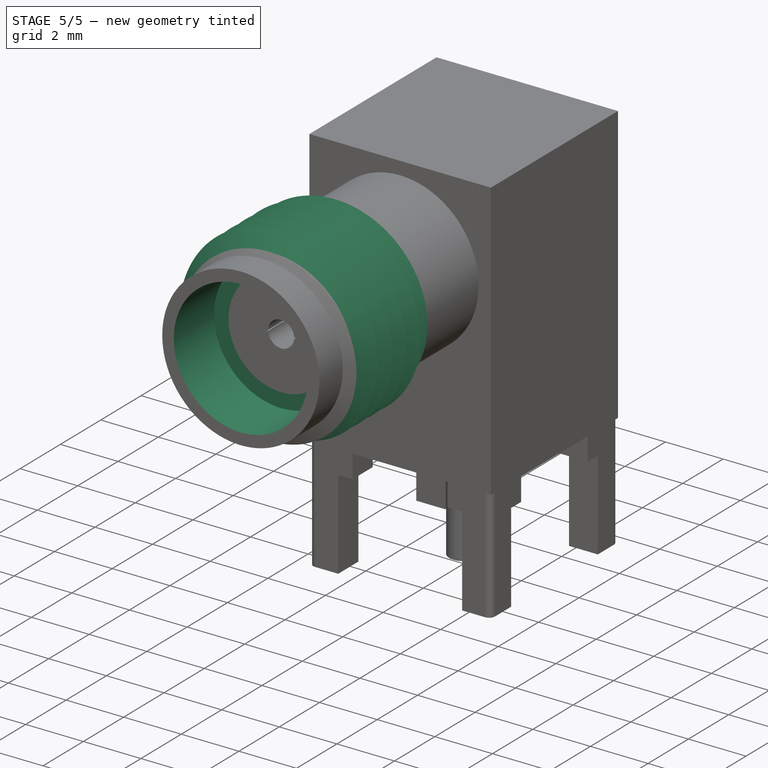
[diagram: stage 5 of 5 — iso view after this stage's code; geometry added in this stage tinted green]
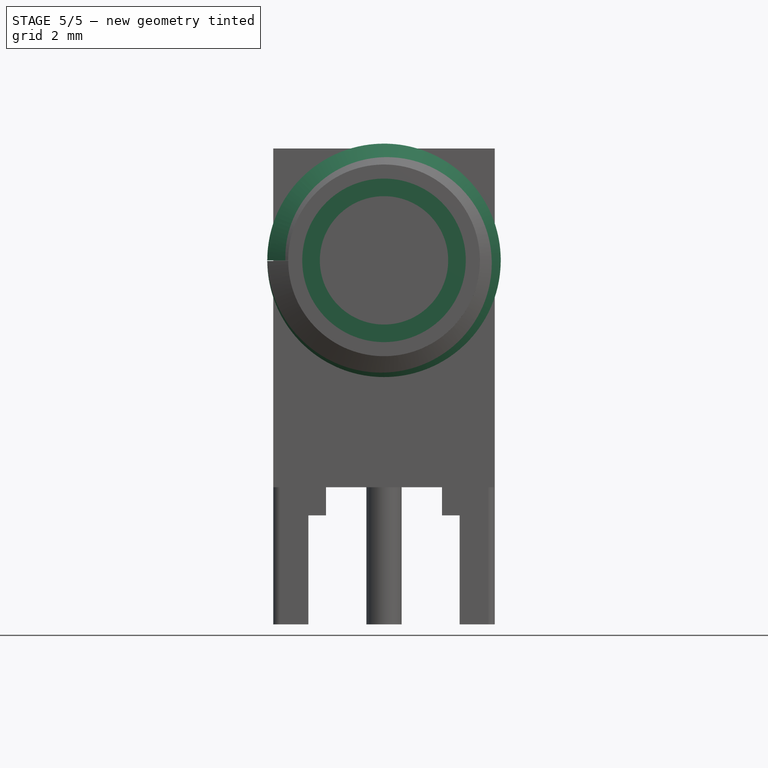
[diagram: stage 5 of 5 — front view after this stage's code; geometry added in this stage tinted green]
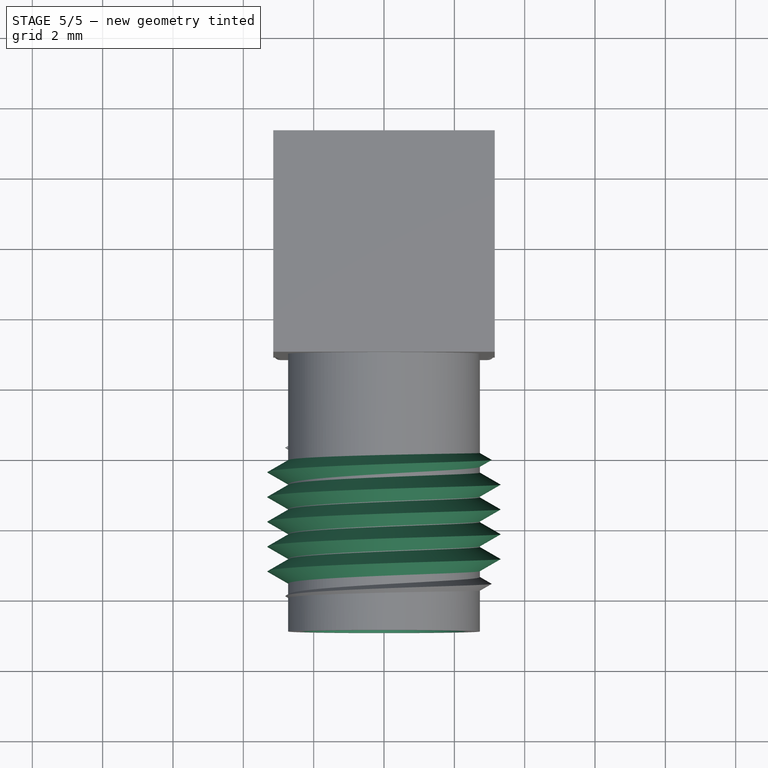
[diagram: stage 5 of 5 — top view after this stage's code; geometry added in this stage tinted green]
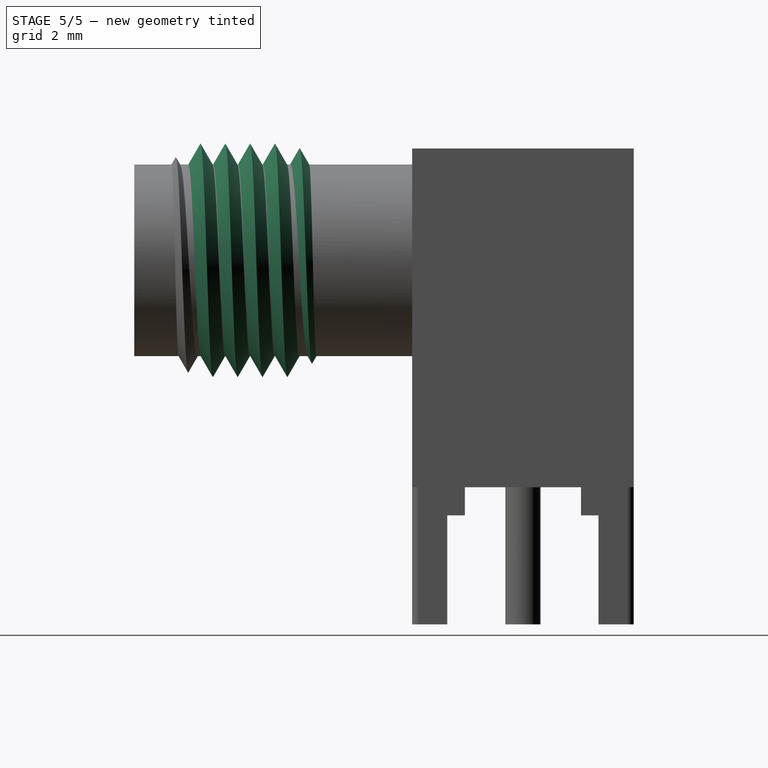
[diagram: stage 5 of 5 — right view after this stage's code; geometry added in this stage tinted green]
FEATURE [PartDesign::AdditiveHelix] AdditiveHelix001
  Angle = 0
  Axis = (0,1,0)
  Base = (0,0,7.25)
  BaseFeature = -> AdditiveHelix
  Growth = 0
  HasBeenEdited = true
  Height = 0.705
  LeftHanded = false
  Mode = 1
  Outside = false
  Pitch = 0.7056
  Profile = -> Sketch009
  ReferenceAxis = -> Sketch009 [V_Axis]
  Refine = true
  Suppressed = false
  Tolerance = 0.1
  Turns = 0.99915
  expr: Pitch = <<Master>>.thread_p
FEATURE [Sketcher::SketchObject] Sketch010
  ArcFitTolerance = 0
  AttachmentOffset = pos=(0,0,7.25) rot=(0,1,0;0rad)
  AttachmentSupport = -> [XY_Plane]
  FullyConstrained = true
  MakeInternals = false
  MapMode = 5
  Placement = pos=(0,0,7.25) rot=(0,0,1;0rad)
  expr: .AttachmentOffset.Base.z = <<Master>>.ra_offset
  expr: Constraints[11] = <<Master>>.ra_dia
  expr: Constraints[13] = <<Master>>.thread_l
  expr: Constraints[21] = <<Master>>.thread_p - <<Master>>.thread_o
  expr: Constraints[22] = <<Master>>.thread_o
  sketch-geometry (8):
    g0: LineSegment StartX=-2.725 StartY=-6.1792 StartZ=0 EndX=-3.31875 EndY=-6.522 EndZ=0
    g1: LineSegment StartX=-3.31875 StartY=-6.522 StartZ=0 EndX=-2.725 EndY=-6.8648 EndZ=0
    g2: LineSegment [constr] StartX=-2.725 StartY=-6.8648 StartZ=0 EndX=-2.725 EndY=-6.1792 EndZ=0
    g3: LineSegment [constr] StartX=-2.725 StartY=-6.8648 StartZ=0 EndX=0 EndY=-6.8648 EndZ=0
    g4: LineSegment [constr] StartX=0 StartY=-6.8648 StartZ=0 EndX=2.725 EndY=-6.8648 EndZ=0
    g5: LineSegment StartX=-2.725 StartY=-6.1792 StartZ=0 EndX=-2.705 EndY=-6.1792 EndZ=0
    g6: LineSegment StartX=-2.705 StartY=-6.1792 StartZ=0 EndX=-2.705 EndY=-6.8648 EndZ=0
    g7: LineSegment StartX=-2.705 StartY=-6.8648 StartZ=0 EndX=-2.725 EndY=-6.8648 EndZ=0
  constraints (23):
    c: Coincident(g0,g1)
    c: Coincident(g1,g2)
    c: Coincident(g2,g0)
    c: Equal(g1,g0)
    c: Equal(g0,g2)
    c: Coincident(g3,g1)
    c: PointOnObject(g3,g-2)
    c: Horizontal(g3)
    c: Coincident(g4,g3)
    c: Horizontal(g4)
    c: Equal(g4,g3)
    c: DistanceX(g1,g4) = 5.45
    c: Vertical(g2)
    c: DistanceY(g0,g-1) = 6.522
    c: Coincident(g0,g5)
    c: Horizontal(g5)
    c: Coincident(g5,g6)
    c: Vertical(g6)
    c: Coincident(g6,g7)
    c: Coincident(g7,g1)
    c: Horizontal(g7)
    c: DistanceY(g4,g5) = 0.6856
    c: DistanceX(g5,g5) = 0.02
FEATURE [PartDesign::LinearPattern] LinearPattern
  BaseFeature = -> AdditiveHelix001
  Direction = -> Sketch009 [V_Axis]
  Length = 2.1168
  Mode = 0
  Occurrences = 4
  Offset = 0.7056
  Originals = -> [AdditiveHelix001]
  Refine = true
  Suppressed = false
  TransformMode = 0
  expr: Length = <<Master>>.thread_p * 3
FEATURE [PartDesign::AdditiveHelix] AdditiveHelix002
  Angle = -36.019
  Axis = (0,1,0)
  Base = (0,0,7.25)
  BaseFeature = -> LinearPattern
  Growth = -0.513006
  HasBeenEdited = true
  Height = 0.705
  LeftHanded = false
  Mode = 0
  Outside = false
  Pitch = 0.7056
  Profile = -> Sketch010
  ReferenceAxis = -> Sketch010 [V_Axis]
  Refine = true
  Suppressed = false
  Tolerance = 0.1
  Turns = 0.99915
  expr: Growth = 0.513 mm
  expr: Pitch = <<Master>>.thread_p
FEATURE [PartDesign::Pocket] Pocket006
  BaseFeature = -> AdditiveHelix002
  Direction = (0,1,-2e-16)
  Length = 2
  Length2 = 100
  Profile = -> Sketch004
  Suppressed = false
  Type = 0
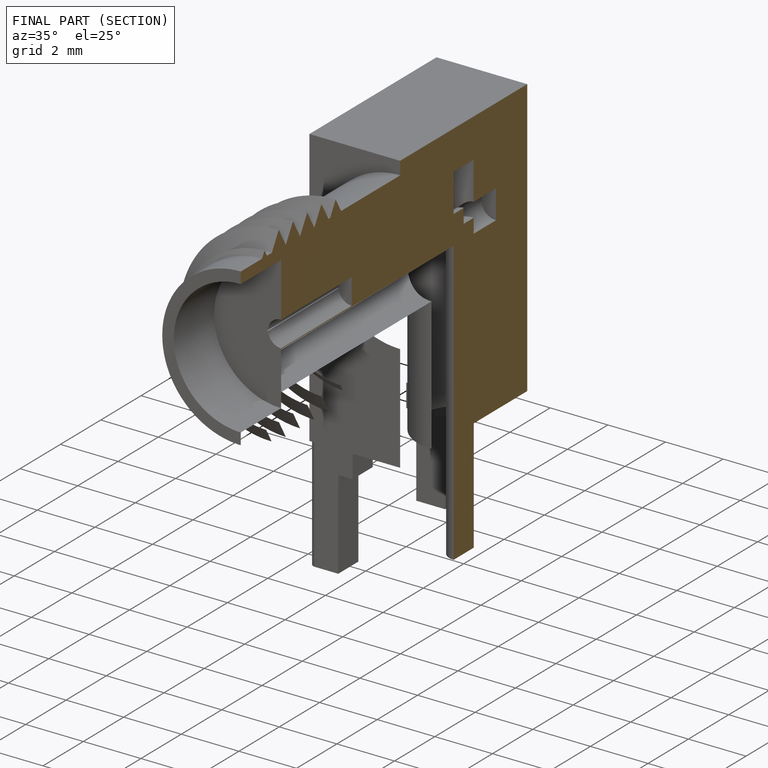
[diagram: finished part — half-section view (interior)]
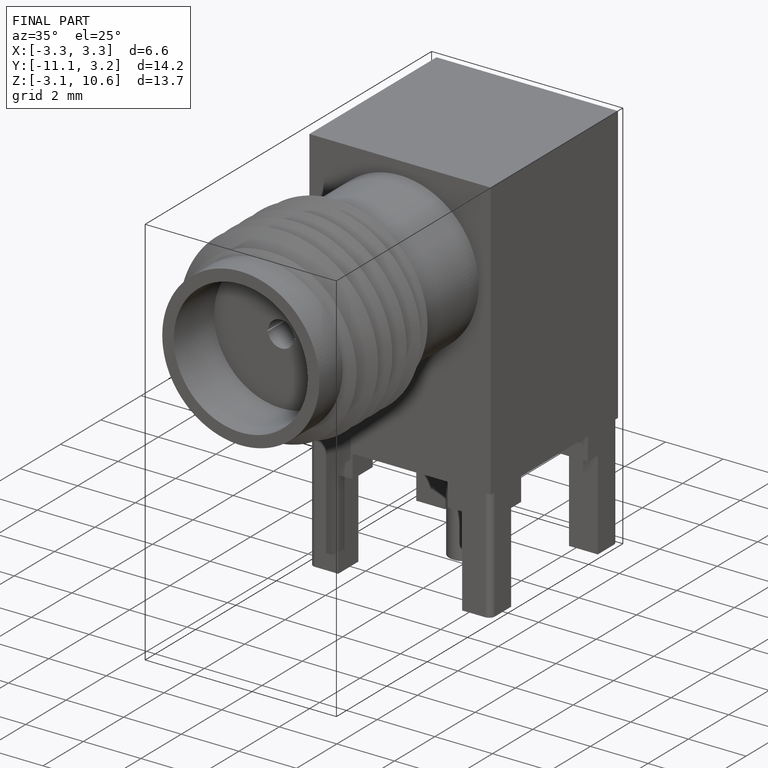
[diagram: finished part — iso view with bounding-box wireframe]
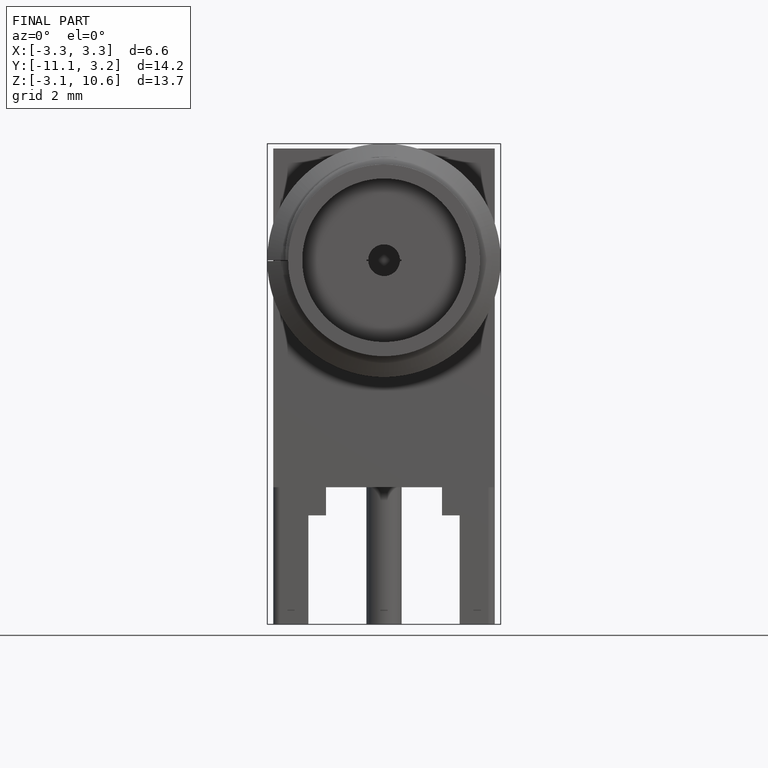
[diagram: finished part — front view with bounding-box wireframe]
